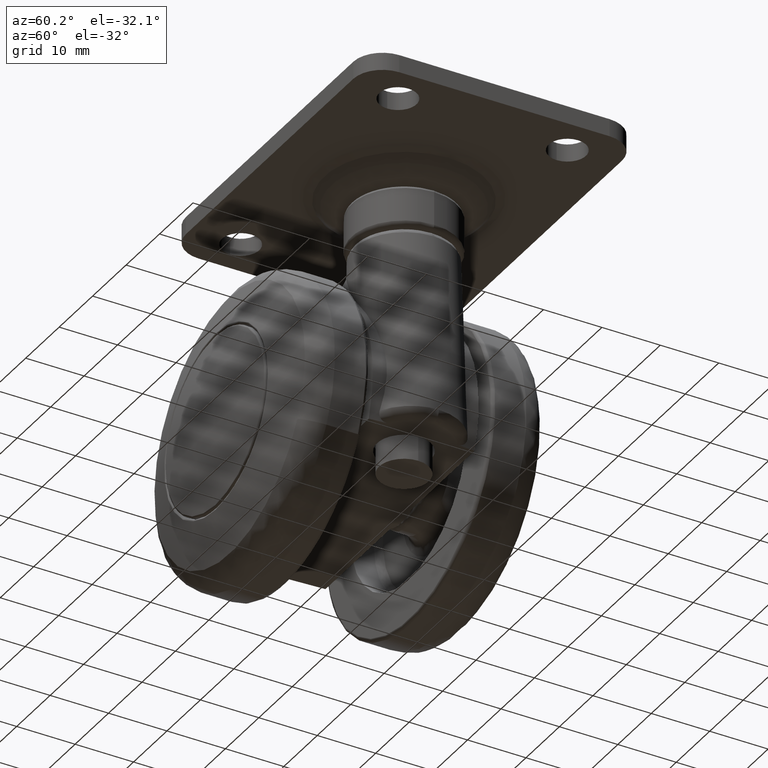
[diagram: clean part render]
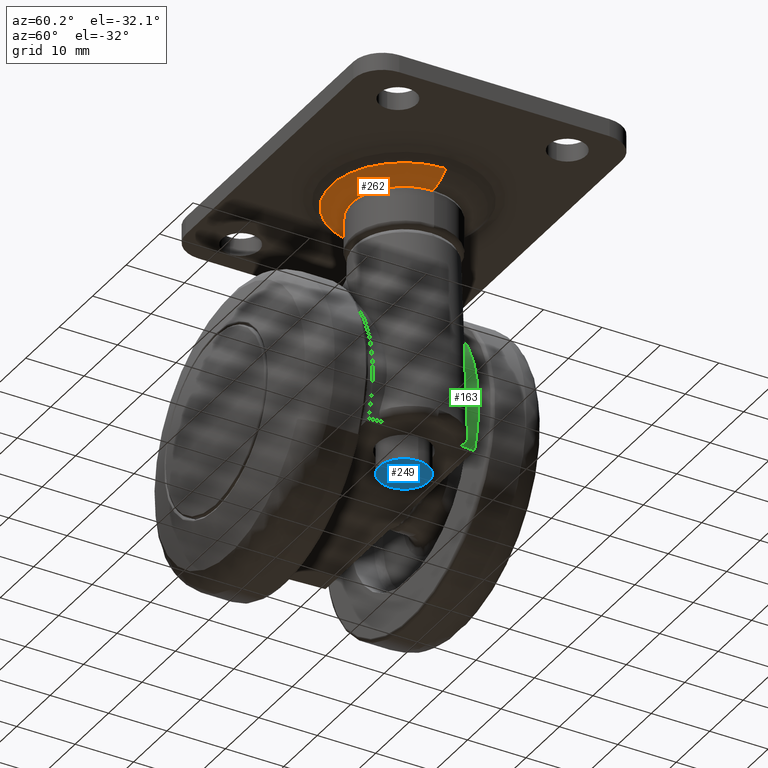
[diagram: same view with three faces highlighted in distinct colors, each labeled with its STEP entity id]
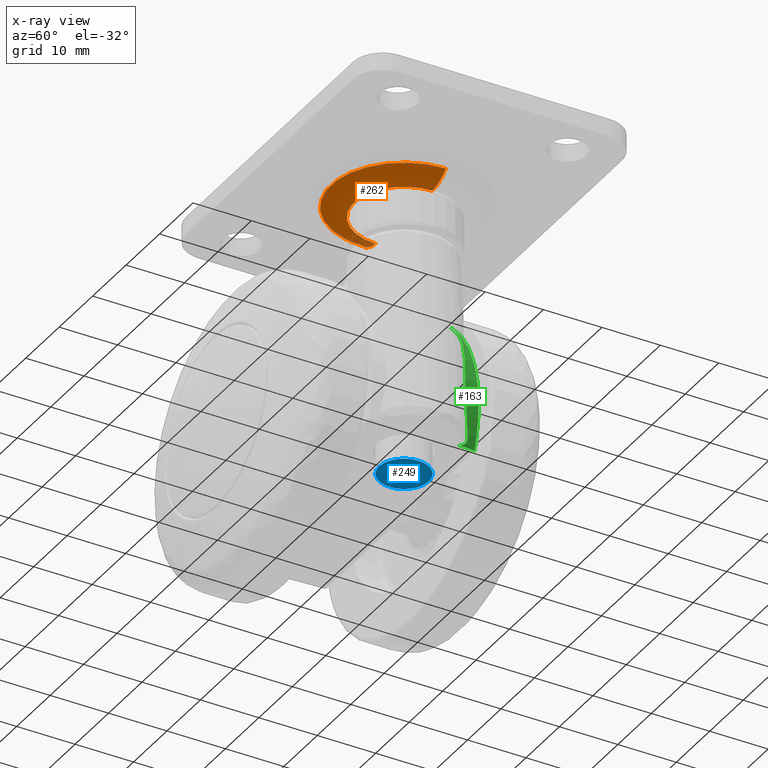
[diagram: x-ray of the same camera — body ghosted, the three highlighted faces saturated]
A machine part, auxiliary view with three faces highlighted in distinct colors.
The next image is the same camera in x-ray (body ghosted, the three faces saturated) — at least one of them is partly hidden behind the body in this view.
Their STEP definitions:

[orange] entity #262 — the highlighted face is a freeform B-spline surface patch.
#262=ADVANCED_FACE('',(#1359),#1358,.T.);
#1358=( BOUNDED_SURFACE() B_SPLINE_SURFACE( 2,2,((#6075,#6076,#6077),(#6078,#6079,#6080),(#6081,#6082,#6083),(#6084,#6085,#6086),(#6087,#6088,#6089)), .UNSPECIFIED.,.F.,.F.,.F.) B_SPLINE_SURFACE_WITH_KNOTS((3,2,3),(3,3),(0.00000000000E+00,5.00000000000E-01,1.00000000000E+00),(0.00000000000E+00,1.00000000000E+00), .UNSPECIFIED. ) GEOMETRIC_REPRESENTATION_ITEM() RATIONAL_B_SPLINE_SURFACE(((1.00000000000E+00,7.08114772209E-01,1.00000000000E+00),(7.07106781187E-01,5.00712757287E-01,7.07106781187E-01),(1.00000000000E+00,7.08114772209E-01,1.00000000000E+00),(7.07106781187E-01,5.00712757287E-01,7.07106781187E-01),(1.00000000000E+00,7.08114772209E-01,1.00000000000E+00))) REPRESENTATION_ITEM('') SURFACE() );
#1359=FACE_OUTER_BOUND('',#6090,.T.);
#6075=CARTESIAN_POINT('',(-1.52969061861E-15,4.75370506108E+00,-1.24912843530E+01));
#6076=CARTESIAN_POINT('',(-1.01087583699E-15,8.97821912813E+00,-8.25470024579E+00));
#6077=CARTESIAN_POINT('',(-4.92061055368E-16,4.75370506108E+00,-4.01811613856E+00));
#6078=CARTESIAN_POINT('',(-1.24912843530E+01,4.75370506108E+00,-1.24912843530E+01));
#6079=CARTESIAN_POINT('',(-8.25470024579E+00,8.97821912813E+00,-8.25470024579E+00));
#6080=CARTESIAN_POINT('',(-4.01811613856E+00,4.75370506108E+00,-4.01811613856E+00));
#6081=CARTESIAN_POINT('',(-1.24912843530E+01,4.75370506108E+00,1.72080518515E-14));
#6082=CARTESIAN_POINT('',(-8.25470024579E+00,8.97821912813E+00,3.16984650590E-14));
#6083=CARTESIAN_POINT('',(-4.01811613856E+00,4.75370506108E+00,1.66892542049E-14));
#6084=CARTESIAN_POINT('',(-1.24912843530E+01,4.75370506108E+00,1.24912843530E+01));
#6085=CARTESIAN_POINT('',(-8.25470024579E+00,8.97821912813E+00,8.25470024579E+00));
#6086=CARTESIAN_POINT('',(-4.01811613856E+00,4.75370506108E+00,4.01811613856E+00));
#6087=CARTESIAN_POINT('',(-5.05214055024E-20,4.75370506108E+00,1.24912843530E+01));
#6088=CARTESIAN_POINT('',(-3.33864034020E-20,8.97821912813E+00,8.25470024579E+00));
#6089=CARTESIAN_POINT('',(-1.62514013015E-20,4.75370506108E+00,4.01811613856E+00));
#6090=EDGE_LOOP('',(#6941,#6942,#6943,#6944));
#6941=ORIENTED_EDGE('',*,*,#7330,.T.);
#6942=ORIENTED_EDGE('',*,*,#7331,.F.);
#6943=ORIENTED_EDGE('',*,*,#7329,.F.);
#6944=ORIENTED_EDGE('',*,*,#7332,.T.);
#7329=EDGE_CURVE('',#9100,#9093,#9113,.T.);
#7330=EDGE_CURVE('',#9119,#9120,#9121,.T.);
#7331=EDGE_CURVE('',#9093,#9120,#9127,.T.);
#7332=EDGE_CURVE('',#9100,#9119,#9133,.T.);
#9093=VERTEX_POINT('',#10823);
#9100=VERTEX_POINT('',#10826);
#9113=CIRCLE('',#10836,1.24912843530E+01);
#9119=VERTEX_POINT('',#10837);
#9120=VERTEX_POINT('',#10838);
#9121=CIRCLE('',#10842,8.50000000000E+00);
#9127=(BOUNDED_CURVE() B_SPLINE_CURVE(2,(#10843,#10844,#10845),.UNSPECIFIED.,.F.,.F.) B_SPLINE_CURVE_WITH_KNOTS((3,3),(0.00000000000E+00,4.75264545944E-01),.UNSPECIFIED.) CURVE() GEOMETRIC_REPRESENTATION_ITEM() RATIONAL_B_SPLINE_CURVE((1.00000000000E+00,8.61277299746E-01,8.54414561789E-01)) REPRESENTATION_ITEM('') );
#9133=(BOUNDED_CURVE() B_SPLINE_CURVE(2,(#10846,#10847,#10848),.UNSPECIFIED.,.F.,.F.) B_SPLINE_CURVE_WITH_KNOTS((3,3),(0.00000000000E+00,4.75264588937E-01),.UNSPECIFIED.) CURVE() GEOMETRIC_REPRESENTATION_ITEM() RATIONAL_B_SPLINE_CURVE((7.50000000000E-01,6.45957965398E-01,6.40810920410E-01)) REPRESENTATION_ITEM('') );
#10823=CARTESIAN_POINT('',(1.18423789293E-15,4.75370506108E+00,-1.24912843530E+01));
#10826=CARTESIAN_POINT('',(1.52969061861E-15,4.75370506108E+00,1.24912843530E+01));
#10833=CARTESIAN_POINT('',(0.00000000000E+00,4.75370506108E+00,1.64432318029E-14));
#10834=DIRECTION('',(0.00000000000E+00,-1.00000000000E+00,-3.48408869219E-15));
#10835=DIRECTION('',(-0.00000000000E+00,-3.48408869219E-15,1.00000000000E+00));
#10836=AXIS2_PLACEMENT_3D('',#10833,#10834,#10835);
#10837=CARTESIAN_POINT('',(1.04091540075E-15,6.50000000000E+00,8.50000000000E+00));
#10838=CARTESIAN_POINT('',(8.88178419700E-16,6.50000000000E+00,-8.50000000000E+00));
#10839=CARTESIAN_POINT('',(0.00000000000E+00,6.50000000000E+00,2.26946287025E-14));
#10840=DIRECTION('',(0.00000000000E+00,-1.00000000000E+00,-3.44822210001E-15));
#10841=DIRECTION('',(-0.00000000000E+00,-3.44822210001E-15,1.00000000000E+00));
#10842=AXIS2_PLACEMENT_3D('',#10839,#10840,#10841);
#10843=CARTESIAN_POINT('',(-1.52969061861E-15,4.75370506108E+00,-1.24912843530E+01));
#10844=CARTESIAN_POINT('',(-1.32696510358E-15,6.40442285161E+00,-1.08358502260E+01));
#10845=CARTESIAN_POINT('',(-1.04091539804E-15,6.50000000091E+00,-8.49999997785E+00));
#10846=CARTESIAN_POINT('',(2.36847578587E-15,4.75370506108E+00,1.24912843530E+01));
#10847=CARTESIAN_POINT('',(2.09647865713E-15,6.40442302499E+00,1.08358500521E+01));
#10848=CARTESIAN_POINT('',(1.61112519861E-15,6.50000001834E+00,8.49999955186E+00));

[blue] entity #249 — the highlighted planar face has unit normal (-0, 0, -1).
#249=ADVANCED_FACE('',(#1217),#1216,.T.);
#1216=PLANE('',#5967);
#1217=FACE_OUTER_BOUND('',#5968,.T.);
#5964=CARTESIAN_POINT('',(-8.83345911860E+00,5.15000000000E+01,-9.77500000000E+00));
#5965=DIRECTION('',(0.00000000000E+00,1.00000000000E+00,3.49148133884E-15));
#5966=DIRECTION('',(0.00000000000E+00,-3.49148133884E-15,1.00000000000E+00));
#5967=AXIS2_PLACEMENT_3D('',#5964,#5965,#5966);
#5968=EDGE_LOOP('',(#6863,#6864));
#6863=ORIENTED_EDGE('',*,*,#7284,.F.);
#6864=ORIENTED_EDGE('',*,*,#7285,.F.);
#7284=EDGE_CURVE('',#8809,#8810,#8811,.T.);
#7285=EDGE_CURVE('',#8810,#8809,#8817,.T.);
#8809=VERTEX_POINT('',#10633);
#8810=VERTEX_POINT('',#10634);
#8811=CIRCLE('',#10638,4.25000000000E+00);
#8817=CIRCLE('',#10642,4.25000000000E+00);
#10633=CARTESIAN_POINT('',(4.44089209850E-16,5.15000000000E+01,-4.25000000000E+00));
#10634=CARTESIAN_POINT('',(5.20457700375E-16,5.15000000000E+01,4.25000000000E+00));
#10635=CARTESIAN_POINT('',(0.00000000000E+00,5.15000000000E+01,1.79811288950E-13));
#10636=DIRECTION('',(0.00000000000E+00,-1.00000000000E+00,-3.34373052122E-15));
#10637=DIRECTION('',(-0.00000000000E+00,-3.34373052122E-15,1.00000000000E+00));
#10638=AXIS2_PLACEMENT_3D('',#10635,#10636,#10637);
#10639=CARTESIAN_POINT('',(0.00000000000E+00,5.15000000000E+01,1.79811288950E-13));
#10640=DIRECTION('',(0.00000000000E+00,-1.00000000000E+00,-3.34373052122E-15));
#10641=DIRECTION('',(-0.00000000000E+00,-3.34373052122E-15,1.00000000000E+00));
#10642=AXIS2_PLACEMENT_3D('',#10639,#10640,#10641);

[green] entity #163 — the highlighted face is a freeform B-spline surface patch.
#163=ADVANCED_FACE('',(#346),#345,.T.);
#345=( BOUNDED_SURFACE() B_SPLINE_SURFACE( 2,2,((#1762,#1763,#1764),(#1765,#1766,#1767),(#1768,#1769,#1770)), .UNSPECIFIED.,.F.,.F.,.F.) B_SPLINE_SURFACE_WITH_KNOTS((3,3),(3,3),(-9.06262816202E-02,-5.99974086142E-02),(0.00000000000E+00,1.46774239961E+00), .UNSPECIFIED. ) GEOMETRIC_REPRESENTATION_ITEM() RATIONAL_B_SPLINE_SURFACE(((1.00000000000E+00,7.42587239536E-01,1.00000000000E+00),(9.99882736309E-01,7.42500161016E-01,9.99882736309E-01),(1.00000000000E+00,7.42587239536E-01,1.00000000000E+00))) REPRESENTATION_ITEM('') SURFACE() );
#346=FACE_OUTER_BOUND('',#1771,.T.);
#1762=CARTESIAN_POINT('',(1.51952116822E+01,9.05022784221E+00,1.79263651866E+01));
#1763=CARTESIAN_POINT('',(3.13632398819E+01,9.05022784221E+00,4.22160081179E+00));
#1764=CARTESIAN_POINT('',(1.93944153896E+01,9.05022784221E+00,-1.32704814744E+01));
#1765=CARTESIAN_POINT('',(1.52848376303E+01,7.52494961219E+00,1.80321003030E+01));
#1766=CARTESIAN_POINT('',(3.15482297439E+01,7.52494961219E+00,4.24650108849E+00));
#1767=CARTESIAN_POINT('',(1.95088095096E+01,7.52494961219E+00,-1.33487547825E+01));
#1768=CARTESIAN_POINT('',(1.53442184458E+01,5.99614197565E+00,1.81021540941E+01));
#1769=CARTESIAN_POINT('',(3.16707930092E+01,5.99614197565E+00,4.26299852889E+00));
#1770=CARTESIAN_POINT('',(1.95846002406E+01,5.99614197565E+00,-1.34006140148E+01));
#1771=EDGE_LOOP('',(#6478,#6479,#6480,#6481,#6482,#6483,#6484,#6485));
#6478=ORIENTED_EDGE('',*,*,#7096,.F.);
#6479=ORIENTED_EDGE('',*,*,#7097,.F.);
#6480=ORIENTED_EDGE('',*,*,#7098,.T.);
#6481=ORIENTED_EDGE('',*,*,#7099,.F.);
#6482=ORIENTED_EDGE('',*,*,#7100,.F.);
#6483=ORIENTED_EDGE('',*,*,#7101,.F.);
#6484=ORIENTED_EDGE('',*,*,#7102,.T.);
#6485=ORIENTED_EDGE('',*,*,#7103,.T.);
#7096=EDGE_CURVE('',#7567,#7568,#7569,.T.);
#7097=EDGE_CURVE('',#7575,#7567,#7576,.T.);
#7098=EDGE_CURVE('',#7575,#7582,#7583,.T.);
#7099=EDGE_CURVE('',#7589,#7582,#7590,.T.);
#7100=EDGE_CURVE('',#7596,#7589,#7597,.T.);
#7101=EDGE_CURVE('',#7603,#7596,#7604,.T.);
#7102=EDGE_CURVE('',#7603,#7610,#7611,.T.);
#7103=EDGE_CURVE('',#7610,#7568,#7617,.T.);
#7567=VERTEX_POINT('',#9665);
#7568=VERTEX_POINT('',#9666);
#7569=(BOUNDED_CURVE() B_SPLINE_CURVE(3,(#9667,#9668,#9669,#9670,#9671,#9672,#9673,#9674,#9675,#9676,#9677,#9678,#9679,#9680,#9681,#9682,#9683,#9684),.UNSPECIFIED.,.F.,.F.) B_SPLINE_CURVE_WITH_KNOTS((4,2,2,2,2,2,2,2,4),(7.67879536466E-03,8.74923494051E-03,9.81967451635E-03,1.19605536680E-02,1.41014328197E-02,1.62423119714E-02,2.05240702748E-02,2.26649494265E-02,2.48058285782E-02),.UNSPECIFIED.) CURVE() GEOMETRIC_REPRESENTATION_ITEM() RATIONAL_B_SPLINE_CURVE((1.00000000000E+00,1.00000000000E+00,1.00000000000E+00,1.00000000000E+00,1.00000000000E+00,1.00000000000E+00,1.00000000000E+00,1.00000000000E+00,1.00000000000E+00,1.00000000000E+00,1.00000000000E+00,1.00000000000E+00,1.00000000000E+00,1.00000000000E+00,1.00000000000E+00,1.00000000000E+00,1.00000000000E+00,1.00000000000E+00)) REPRESENTATION_ITEM('') );
#7575=VERTEX_POINT('',#9685);
#7576=(BOUNDED_CURVE() B_SPLINE_CURVE(3,(#9686,#9687,#9688,#9689,#9690,#9691),.UNSPECIFIED.,.F.,.F.) B_SPLINE_CURVE_WITH_KNOTS((4,2,4),(1.62168793165E-03,4.65024164816E-03,7.67879536466E-03),.UNSPECIFIED.) CURVE() GEOMETRIC_REPRESENTATION_ITEM() RATIONAL_B_SPLINE_CURVE((1.00000000000E+00,1.00000000000E+00,1.00000000000E+00,1.00000000000E+00,1.00000000000E+00,1.00000000000E+00)) REPRESENTATION_ITEM('') );
#7582=VERTEX_POINT('',#9692);
#7583=(BOUNDED_CURVE() B_SPLINE_CURVE(3,(#9693,#9694,#9695,#9696,#9697,#9698,#9699,#9700,#9701,#9702,#9703,#9704),.UNSPECIFIED.,.F.,.F.) B_SPLINE_CURVE_WITH_KNOTS((4,2,2,2,2,4),(3.45641203942E-17,3.14739624297E-04,6.29479248595E-04,1.25895849719E-03,1.88843774578E-03,2.51791699438E-03),.UNSPECIFIED.) CURVE() GEOMETRIC_REPRESENTATION_ITEM() RATIONAL_B_SPLINE_CURVE((1.00000000000E+00,1.00000000000E+00,1.00000000000E+00,1.00000000000E+00,1.00000000000E+00,1.00000000000E+00,1.00000000000E+00,1.00000000000E+00,1.00000000000E+00,1.00000000000E+00,1.00000000000E+00,1.00000000000E+00)) REPRESENTATION_ITEM('') );
#7589=VERTEX_POINT('',#9705);
#7590=CIRCLE('',#9709,9.46624619549E+01);
#7596=VERTEX_POINT('',#9710);
#7597=CIRCLE('',#9714,2.35000000000E+01);
#7603=VERTEX_POINT('',#9715);
#7604=CIRCLE('',#9719,2.35000000000E+01);
#7610=VERTEX_POINT('',#9720);
#7611=(BOUNDED_CURVE() B_SPLINE_CURVE(3,(#9721,#9722,#9723,#9724),.UNSPECIFIED.,.F.,.F.) B_SPLINE_CURVE_WITH_KNOTS((4,4),(0.00000000000E+00,1.00000000000E+00),.UNSPECIFIED.) CURVE() GEOMETRIC_REPRESENTATION_ITEM() RATIONAL_B_SPLINE_CURVE((1.00000000000E+00,1.00000000000E+00,1.00000000000E+00,1.00000000000E+00)) REPRESENTATION_ITEM('') );
#7617=CIRCLE('',#9728,2.35484495782E+01);
#9665=CARTESIAN_POINT('',(2.36802854101E+01,6.77944518271E+00,2.86019897865E-15));
#9666=CARTESIAN_POINT('',(1.76255213590E+01,8.50000000000E+00,1.56163527868E+01));
#9667=CARTESIAN_POINT('',(2.36802854101E+01,6.77944518271E+00,2.86019897865E-15));
#9668=CARTESIAN_POINT('',(2.36814385005E+01,6.76247569064E+00,3.62494744622E-01));
#9669=CARTESIAN_POINT('',(2.36737713899E+01,6.75198686180E+00,7.25655566750E-01));
#9670=CARTESIAN_POINT('',(2.36412295412E+01,6.74447914433E+00,1.44580263357E+00));
#9671=CARTESIAN_POINT('',(2.36163649722E+01,6.74740131056E+00,1.80391600291E+00));
#9672=CARTESIAN_POINT('',(2.35165709848E+01,6.77554314801E+00,2.87252313093E+00));
#9673=CARTESIAN_POINT('',(2.34164960113E+01,6.82034141055E+00,3.57727802746E+00));
#9674=CARTESIAN_POINT('',(2.31510421637E+01,6.95279167568E+00,4.97248103030E+00));
#9675=CARTESIAN_POINT('',(2.29856651506E+01,7.04034710264E+00,5.66293666959E+00));
#9676=CARTESIAN_POINT('',(2.25896229283E+01,7.24365217402E+00,7.03063925199E+00));
#9677=CARTESIAN_POINT('',(2.23576508911E+01,7.35987279110E+00,7.71055795391E+00));
#9678=CARTESIAN_POINT('',(2.15776247033E+01,7.71749629904E+00,9.69379344383E+00));
#9679=CARTESIAN_POINT('',(2.09443474628E+01,7.96895158213E+00,1.09523103285E+01));
#9680=CARTESIAN_POINT('',(1.98265513524E+01,8.26155134234E+00,1.27627369874E+01));
#9681=CARTESIAN_POINT('',(1.94257408198E+01,8.34508881406E+00,1.33531786427E+01));
#9682=CARTESIAN_POINT('',(1.85650068348E+01,8.46452569264E+00,1.45097445410E+01));
#9683=CARTESIAN_POINT('',(1.81060630251E+01,8.50000000000E+00,1.50739855954E+01));
#9684=CARTESIAN_POINT('',(1.76255213590E+01,8.50000000000E+00,1.56163527868E+01));
#9685=CARTESIAN_POINT('',(2.28633970893E+01,7.52020021904E+00,-5.95894406254E+00));
#9686=CARTESIAN_POINT('',(2.28633970893E+01,7.52020021904E+00,-5.95894406254E+00));
#9687=CARTESIAN_POINT('',(2.31281917187E+01,7.35107212126E+00,-4.99354775237E+00));
#9688=CARTESIAN_POINT('',(2.33296619446E+01,7.18893812807E+00,-4.01654547382E+00));
#9689=CARTESIAN_POINT('',(2.36040599188E+01,6.92692031595E+00,-2.03259278014E+00));
#9690=CARTESIAN_POINT('',(2.36770230158E+01,6.82745631702E+00,-1.02559250500E+00));
#9691=CARTESIAN_POINT('',(2.36802854101E+01,6.77944518271E+00,2.86019897865E-15));
#9692=CARTESIAN_POINT('',(2.25140146487E+01,5.99690201079E+00,-7.50000000000E+00));
#9693=CARTESIAN_POINT('',(2.28633970893E+01,7.52020021904E+00,-5.95894406254E+00));
#9694=CARTESIAN_POINT('',(2.28356737862E+01,7.53790748725E+00,-6.06001852398E+00));
#9695=CARTESIAN_POINT('',(2.28081099833E+01,7.54389479301E+00,-6.16121031467E+00));
#9696=CARTESIAN_POINT('',(2.27533726923E+01,7.53151782698E+00,-6.36385366276E+00));
#9697=CARTESIAN_POINT('',(2.27260300751E+01,7.51262126373E+00,-6.46596824820E+00));
#9698=CARTESIAN_POINT('',(2.26493124462E+01,7.41969741511E+00,-6.75643446717E+00));
#9699=CARTESIAN_POINT('',(2.26033836538E+01,7.30664410214E+00,-6.93603726094E+00));
#9700=CARTESIAN_POINT('',(2.25356489605E+01,7.00547321070E+00,-7.22414642707E+00));
#9701=CARTESIAN_POINT('',(2.25140267617E+01,6.81864581025E+00,-7.33226055479E+00));
#9702=CARTESIAN_POINT('',(2.24967425303E+01,6.42056606429E+00,-7.46936039722E+00));
#9703=CARTESIAN_POINT('',(2.25006043480E+01,6.20867838771E+00,-7.50000000000E+00));
#9704=CARTESIAN_POINT('',(2.25140146487E+01,5.99690201079E+00,-7.50000000000E+00));
#9705=CARTESIAN_POINT('',(2.22710574513E+01,9.05000000000E+00,-7.50000000000E+00));
#9706=CARTESIAN_POINT('',(-7.19592665078E+01,1.51923135025E-02,-7.49999999997E+00));
#9707=DIRECTION('',(-2.86735616633E-13,-1.52469559482E-14,-1.00000000000E+00));
#9708=DIRECTION('',(-9.95434959255E-01,-9.54423485288E-02,2.86881862144E-13));
#9709=AXIS2_PLACEMENT_3D('',#9706,#9707,#9708);
#9710=CARTESIAN_POINT('',(2.35000000000E+01,9.05000000000E+00,2.87791997800E-15));
#9711=CARTESIAN_POINT('',(0.00000000000E+00,9.05000000000E+00,0.00000000000E+00));
#9712=DIRECTION('',(-0.00000000000E+00,1.00000000000E+00,0.00000000000E+00));
#9713=DIRECTION('',(-1.00000000000E+00,-0.00000000000E+00,-1.22464679915E-16));
#9714=AXIS2_PLACEMENT_3D('',#9711,#9712,#9713);
#9715=CARTESIAN_POINT('',(1.52817085386E+01,9.05000000222E+00,1.78528420027E+01));
#9716=CARTESIAN_POINT('',(0.00000000000E+00,9.05000000000E+00,0.00000000000E+00));
#9717=DIRECTION('',(-0.00000000000E+00,1.00000000000E+00,0.00000000000E+00));
#9718=DIRECTION('',(-6.50282771203E-01,-0.00000000000E+00,-7.59692251821E-01));
#9719=AXIS2_PLACEMENT_3D('',#9716,#9717,#9718);
#9720=CARTESIAN_POINT('',(1.64472139091E+01,8.50000000000E+00,1.68528523450E+01));
#9721=CARTESIAN_POINT('',(1.52817085386E+01,9.05000000222E+00,1.78528420027E+01));
#9722=CARTESIAN_POINT('',(1.56518890315E+01,8.90346195384E+00,1.75533744162E+01));
#9723=CARTESIAN_POINT('',(1.60422080290E+01,8.72015143099E+00,1.72218675446E+01));
#9724=CARTESIAN_POINT('',(1.64472139091E+01,8.50000000000E+00,1.68528523450E+01));
#9725=CARTESIAN_POINT('',(0.00000000000E+00,8.50000000000E+00,0.00000000000E+00));
#9726=DIRECTION('',(-0.00000000000E+00,1.00000000000E+00,0.00000000000E+00));
#9727=DIRECTION('',(-6.98441477199E-01,-0.00000000000E+00,-7.15667173292E-01));
#9728=AXIS2_PLACEMENT_3D('',#9725,#9726,#9727);